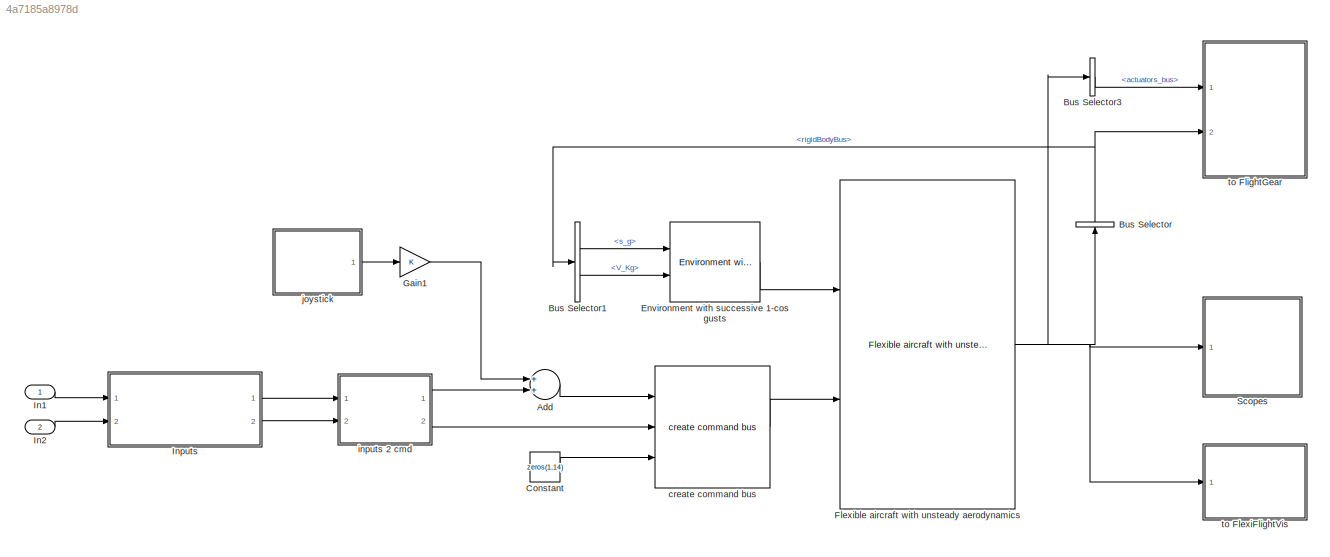
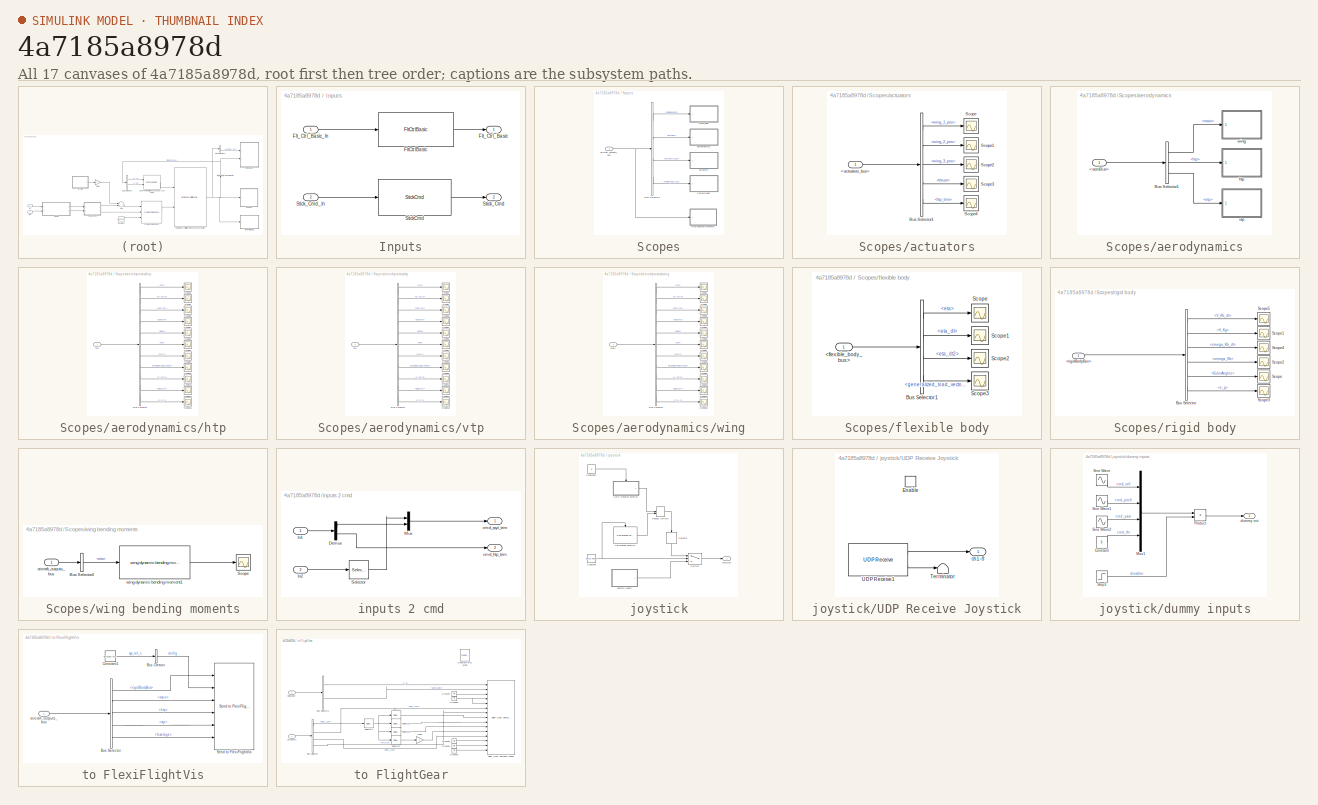
[diagram: thumbnail index - all 17 canvases of the model, root first then tree order]
MODEL slx_4a7185a8978d
KIND model
CONFIG AbsTol = 1e-2
CONFIG EnableMultiTasking = off
CONFIG FixedStep = 1/600
CONFIG MaxStep = auto
CONFIG MinStep = auto
CONFIG RelTol = 1e-2
CONFIG SampleTimeConstraint = Unconstrained
CONFIG Solver = ode4
CONFIG SolverName = ode4
CONFIG StartTime = 0.0
CONFIG StopTime = 1000
WORKSPACE source: MAT-file member
WORKSPACE Var = 0
BLOCK [Sum] Add
  InputSameDT = off
  OutDataTypeStr = Inherit: Inherit via internal rule
  Ports = [2, 1]
  SaturateOnIntegerOverflow = off
BLOCK [BusSelector] Bus Selector
  OutputAsBus = off
  OutputSignals = flexible_body_bus.rigidBodyBus
  Ports = [1, 1]
BLOCK [BusSelector] Bus Selector1
  OutputAsBus = off
  OutputSignals = s_g,V_Kg
  Ports = [1, 2]
BLOCK [BusSelector] Bus Selector3
  OutputAsBus = off
  OutputSignals = actuators_bus
  Ports = [1, 1]
BLOCK [Constant] Constant
  Value = zeros(1,14)
BLOCK [Reference] Environment with successive 1-cos gusts  REF=se2a_environment_lib/Environment
with successive 1-cos gusts
  Ports = [2, 1]
  SourceBlock = se2a_environment_lib/Environment\nwith successive 1-cos gusts
  SourceProductName = SE2A library
BLOCK [Reference] Flexible aircraft with unsteady aerodynamics  REF=flight_dynamics_models/Flexible aircraft with unsteady aerodynamics
  Ports = [2, 1]
  SourceBlock = flight_dynamics_models/Flexible aircraft with unsteady aerodynamics
  SourceProductName = SE2A library
BLOCK [Gain] Gain1
  OutDataTypeStr = Inherit: Inherit via internal rule
  ParamDataTypeStr = Inherit: Inherit via internal rule
  SaturateOnIntegerOverflow = off
BLOCK [Inport] In1
  IconDisplay = Port number
BLOCK [Inport] In2
  IconDisplay = Port number
  Port = 2
BLOCK [SubSystem] Inputs
  Ports = [2, 2]
  RequestExecContextInheritance = off
BLOCK [Reference] Inputs/FltCtrlBasic  REF=InputBlocks_library/FltCtrlBasic
  Ports = [1, 1]
  SourceBlock = InputBlocks_library/FltCtrlBasic
  SourceType = SubSystem
BLOCK [Outport] Inputs/Flt_Ctrl_Basic
  IconDisplay = Port number
BLOCK [Inport] Inputs/Flt_Ctrl_Basic_In
  IconDisplay = Port number
BLOCK [Reference] Inputs/StickCmd  REF=InputBlocks_library/StickCmd
  Ports = [1, 1]
  SourceBlock = InputBlocks_library/StickCmd
  SourceType = SubSystem
BLOCK [Outport] Inputs/Stick_Cmd
  IconDisplay = Port number
  Port = 2
BLOCK [Inport] Inputs/Stick_Cmd_In
  IconDisplay = Port number
  Port = 2
BLOCK [SubSystem] Scopes
  Commented = on
  Ports = [1]
  RequestExecContextInheritance = off
BLOCK [BusSelector] Scopes/Bus Selector1
  OutputAsBus = off
  OutputSignals = flexible_body_bus.rigidBodyBus,aeroBus,actuators_bus,flexible_body_bus
  Ports = [1, 4]
BLOCK [SubSystem] Scopes/actuators
  Ports = [1]
  RequestExecContextInheritance = off
BLOCK [Inport] Scopes/actuators/<actuators_bus>
  IconDisplay = Port number
BLOCK [BusSelector] Scopes/actuators/Bus Selector1
  OutputAsBus = off
  OutputSignals = wing_1_pos,wing_2_pos,wing_3_pos,thrust,htp_trim
  Ports = [1, 5]
BLOCK [Scope] Scopes/actuators/Scope
  Floating = off
  NumInputPorts = 1
  Ports = [1]
  ScopeSpecificationString = Simulink.scopes.TimeScopeBlockCfg('CurrentConfiguration', extmgr.ConfigurationSet(extmgr.Configuration('Core','General UI',true),extmgr.Configuration('Core','Source UI',true),extmgr.Configuration('Sources','WiredSimulink',true,'DataLoggingVariableName','ScopeData1'),extmgr.Configuration('Visuals','Time Domain',true),extmgr.Configuration('Tools','Plot Navigation',true),extmgr.Configuration('Tools',...<+40ch>  <repeated x3 — deduplicated; at blocks: Scope>
BLOCK [Scope] Scopes/actuators/Scope1
  Floating = off
  NumInputPorts = 1
  Ports = [1]
  ScopeSpecificationString = Simulink.scopes.TimeScopeBlockCfg('CurrentConfiguration', extmgr.ConfigurationSet(extmgr.Configuration('Core','General UI',true),extmgr.Configuration('Core','Source UI',true),extmgr.Configuration('Sources','WiredSimulink',true,'DataLoggingVariableName','ScopeData2'),extmgr.Configuration('Visuals','Time Domain',true),extmgr.Configuration('Tools','Plot Navigation',true),extmgr.Configuration('Tools',...<+40ch>
BLOCK [Scope] Scopes/actuators/Scope2
  Floating = off
  NumInputPorts = 1
  Ports = [1]
  ScopeSpecificationString = Simulink.scopes.TimeScopeBlockCfg('CurrentConfiguration', extmgr.ConfigurationSet(extmgr.Configuration('Core','General UI',true),extmgr.Configuration('Core','Source UI',true),extmgr.Configuration('Sources','WiredSimulink',true,'DataLoggingVariableName','ScopeData3'),extmgr.Configuration('Visuals','Time Domain',true),extmgr.Configuration('Tools','Plot Navigation',true),extmgr.Configuration('Tools',...<+40ch>
BLOCK [Scope] Scopes/actuators/Scope3
  Floating = off
  NumInputPorts = 1
  Ports = [1]
  ScopeSpecificationString = Simulink.scopes.TimeScopeBlockCfg('CurrentConfiguration', extmgr.ConfigurationSet(extmgr.Configuration('Core','General UI',true),extmgr.Configuration('Core','Source UI',true),extmgr.Configuration('Sources','WiredSimulink',true,'DataLoggingVariableName','ScopeData4'),extmgr.Configuration('Visuals','Time Domain',true),extmgr.Configuration('Tools','Plot Navigation',true),extmgr.Configuration('Tools',...<+40ch>
BLOCK [Scope] Scopes/actuators/Scope4
  Floating = off
  NumInputPorts = 1
  Ports = [1]
  ScopeSpecificationString = Simulink.scopes.TimeScopeBlockCfg('CurrentConfiguration', extmgr.ConfigurationSet(extmgr.Configuration('Core','General UI',true),extmgr.Configuration('Core','Source UI',true),extmgr.Configuration('Sources','WiredSimulink',true,'DataLoggingVariableName','ScopeData5'),extmgr.Configuration('Visuals','Time Domain',true),extmgr.Configuration('Tools','Plot Navigation',true),extmgr.Configuration('Tools',...<+40ch>
BLOCK [SubSystem] Scopes/aerodynamics
  Ports = [1]
  RequestExecContextInheritance = off
BLOCK [Inport] Scopes/aerodynamics/<aeroBus>
  IconDisplay = Port number
BLOCK [BusSelector] Scopes/aerodynamics/Bus Selector1
  OutputAsBus = off
  OutputSignals = main,htp,vtp
  Ports = [1, 3]
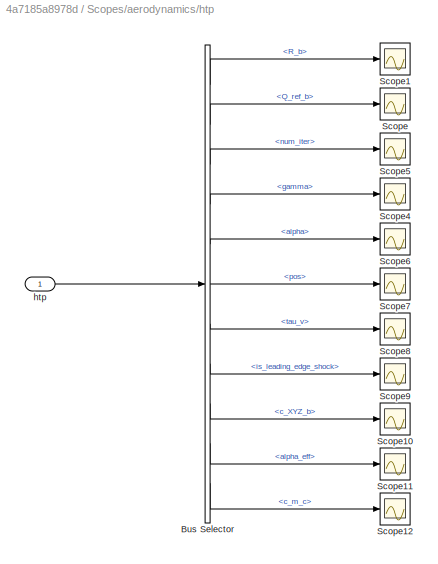
BLOCK [SubSystem] Scopes/aerodynamics/htp
  Ports = [1]
  RequestExecContextInheritance = off
BLOCK [BusSelector] Scopes/aerodynamics/htp/Bus Selector
  OutputAsBus = off
  OutputSignals = aero.force_glob.R_b,aero.force_glob.Q_ref_b,aero.circulation.num_iter,aero.circulation.gamma,body.alpha,actuators.pos,aero.unsteady.tau_v,aero.unsteady.is_leading_edge_shock,aero.coeff_loc.c_XYZ_b,aero.circulation.alpha_eff,aero.unsteady.c_m_c  <repeated x3 — deduplicated; at blocks: Bus Selector>
  Ports = [1, 11]
BLOCK [Scope] Scopes/aerodynamics/htp/Scope
  Floating = off
  NumInputPorts = 1
  Ports = [1]
  ScopeSpecificationString = Simulink.scopes.TimeScopeBlockCfg('CurrentConfiguration', extmgr.ConfigurationSet(extmgr.Configuration('Core','General UI',true),extmgr.Configuration('Core','Source UI',true),extmgr.Configuration('Sources','WiredSimulink',true),extmgr.Configuration('Visuals','Time Domain',true,'SerializedDisplays',{struct('MinYLimReal','-184895.6256','MaxYLimReal','154792.59395','YLabelReal','','MinYLimMag','    0...<+1557ch>  <repeated x3 — deduplicated; at blocks: Scope>
BLOCK [Scope] Scopes/aerodynamics/htp/Scope1
  Floating = off
  NumInputPorts = 1
  Ports = [1]
  ScopeSpecificationString = Simulink.scopes.TimeScopeBlockCfg('CurrentConfiguration', extmgr.ConfigurationSet(extmgr.Configuration('Core','General UI',true),extmgr.Configuration('Core','Source UI',true),extmgr.Configuration('Sources','WiredSimulink',true,'DataLoggingVariableName','ScopeData1'),extmgr.Configuration('Visuals','Time Domain',true,'SerializedDisplays',{struct('MinYLimReal','-1568444.15978','MaxYLimReal','293844.6...<+1502ch>  <repeated x3 — deduplicated; at blocks: Scope1>
BLOCK [Scope] Scopes/aerodynamics/htp/Scope10
  Floating = off
  NumInputPorts = 1
  Ports = [1]
  ScopeSpecificationString = Simulink.scopes.TimeScopeBlockCfg('CurrentConfiguration', extmgr.ConfigurationSet(extmgr.Configuration('Core','General UI',true),extmgr.Configuration('Core','Source UI',true),extmgr.Configuration('Sources','WiredSimulink',true,'DataLoggingVariableName','ScopeData3'),extmgr.Configuration('Visuals','Time Domain',true,'SerializedDisplays',{struct('MinYLimReal','-0.83108','MaxYLimReal','0.62705','YLab...<+3241ch>  <repeated x3 — deduplicated; at blocks: Scope10>
BLOCK [Scope] Scopes/aerodynamics/htp/Scope11
  Floating = off
  NumInputPorts = 1
  Ports = [1]
  ScopeSpecificationString = Simulink.scopes.TimeScopeBlockCfg('CurrentConfiguration', extmgr.ConfigurationSet(extmgr.Configuration('Core','General UI',true),extmgr.Configuration('Core','Source UI',true),extmgr.Configuration('Sources','WiredSimulink',true,'DataLoggingVariableName','ScopeData1'),extmgr.Configuration('Visuals','Time Domain',true,'SerializedDisplays',{struct('MinYLimReal','-0.21087','MaxYLimReal','0.43502','YLab...<+2439ch>  <repeated x3 — deduplicated; at blocks: Scope11>
BLOCK [Scope] Scopes/aerodynamics/htp/Scope12
  Floating = off
  NumInputPorts = 1
  Ports = [1]
  ScopeSpecificationString = Simulink.scopes.TimeScopeBlockCfg('CurrentConfiguration', extmgr.ConfigurationSet(extmgr.Configuration('Core','General UI',true),extmgr.Configuration('Core','Source UI',true),extmgr.Configuration('Sources','WiredSimulink',true,'DataLoggingVariableName','ScopeData2'),extmgr.Configuration('Visuals','Time Domain',true,'SerializedDisplays',{struct('MinYLimReal','-0.09849','MaxYLimReal','-0.08626','YLa...<+3578ch>  <repeated x3 — deduplicated; at blocks: Scope12>
BLOCK [Scope] Scopes/aerodynamics/htp/Scope4
  Floating = off
  NumInputPorts = 1
  Ports = [1]
  ScopeSpecificationString = Simulink.scopes.TimeScopeBlockCfg('CurrentConfiguration', extmgr.ConfigurationSet(extmgr.Configuration('Core','General UI',true),extmgr.Configuration('Core','Source UI',true),extmgr.Configuration('Sources','WiredSimulink',true,'DataLoggingVariableName','ScopeData2'),extmgr.Configuration('Visuals','Time Domain',true,'SerializedDisplays',{struct('MinYLimReal','-0.02668','MaxYLimReal','0.06156','YLab...<+1939ch>  <repeated x3 — deduplicated; at blocks: Scope4>
BLOCK [Scope] Scopes/aerodynamics/htp/Scope5
  Floating = off
  NumInputPorts = 1
  Ports = [1]
  ScopeSpecificationString = Simulink.scopes.TimeScopeBlockCfg('CurrentConfiguration', extmgr.ConfigurationSet(extmgr.Configuration('Core','General UI',true),extmgr.Configuration('Core','Source UI',true),extmgr.Configuration('Sources','WiredSimulink',true,'DataLoggingVariableName','ScopeData3'),extmgr.Configuration('Visuals','Time Domain',true,'SerializedDisplays',{struct('MinYLimReal','0.99807','MaxYLimReal','1.00097','YLabe...<+1540ch>  <repeated x3 — deduplicated; at blocks: Scope5>
BLOCK [Scope] Scopes/aerodynamics/htp/Scope6
  Floating = off
  NumInputPorts = 1
  Ports = [1]
  ScopeSpecificationString = Simulink.scopes.TimeScopeBlockCfg('CurrentConfiguration', extmgr.ConfigurationSet(extmgr.Configuration('Core','General UI',true),extmgr.Configuration('Core','Source UI',true),extmgr.Configuration('Sources','WiredSimulink',true,'DataLoggingVariableName','ScopeData2'),extmgr.Configuration('Visuals','Time Domain',true,'SerializedDisplays',{struct('MinYLimReal','-0.02816','MaxYLimReal','0.06705','YLab...<+1440ch>  <repeated x3 — deduplicated; at blocks: Scope6>
BLOCK [Scope] Scopes/aerodynamics/htp/Scope7
  Floating = off
  NumInputPorts = 1
  Ports = [1]
  ScopeSpecificationString = Simulink.scopes.TimeScopeBlockCfg('CurrentConfiguration', extmgr.ConfigurationSet(extmgr.Configuration('Core','General UI',true),extmgr.Configuration('Core','Source UI',true),extmgr.Configuration('Sources','WiredSimulink',true,'DataLoggingVariableName','ScopeData1'),extmgr.Configuration('Visuals','Time Domain',true,'SerializedDisplays',{struct('MinYLimReal','-17.69476','MaxYLimReal','17.69476','YL...<+2306ch>  <repeated x3 — deduplicated; at blocks: Scope7>
BLOCK [Scope] Scopes/aerodynamics/htp/Scope8
  Floating = off
  NumInputPorts = 1
  Ports = [1]
  ScopeSpecificationString = Simulink.scopes.TimeScopeBlockCfg('CurrentConfiguration', extmgr.ConfigurationSet(extmgr.Configuration('Core','General UI',true),extmgr.Configuration('Core','Source UI',true),extmgr.Configuration('Sources','WiredSimulink',true,'DataLoggingVariableName','ScopeData1'),extmgr.Configuration('Visuals','Time Domain',true,'SerializedDisplays',{struct('MinYLimReal','-568.20569','MaxYLimReal','5113.85123',...<+2878ch>  <repeated x3 — deduplicated; at blocks: Scope8>
BLOCK [Scope] Scopes/aerodynamics/htp/Scope9
  Floating = off
  NumInputPorts = 1
  Ports = [1]
  ScopeSpecificationString = Simulink.scopes.TimeScopeBlockCfg('CurrentConfiguration', extmgr.ConfigurationSet(extmgr.Configuration('Core','General UI',true),extmgr.Configuration('Core','Source UI',true),extmgr.Configuration('Sources','WiredSimulink',true,'DataLoggingVariableName','ScopeData2'),extmgr.Configuration('Visuals','Time Domain',true,'SerializedDisplays',{struct('MinYLimReal','-0.125','MaxYLimReal','1.125','YLabelRe...<+3563ch>  <repeated x3 — deduplicated; at blocks: Scope9>
BLOCK [Inport] Scopes/aerodynamics/htp/htp
  IconDisplay = Port number
BLOCK [SubSystem] Scopes/aerodynamics/vtp
  Ports = [1]
  RequestExecContextInheritance = off
BLOCK [BusSelector] Scopes/aerodynamics/vtp/Bus Selector
  OutputAsBus = off
  Ports = [1, 11]
BLOCK [Scope] Scopes/aerodynamics/vtp/Scope
  Floating = off
  NumInputPorts = 1
  Ports = [1]
BLOCK [Scope] Scopes/aerodynamics/vtp/Scope1
  Floating = off
  NumInputPorts = 1
  Ports = [1]
BLOCK [Scope] Scopes/aerodynamics/vtp/Scope10
  Floating = off
  NumInputPorts = 1
  Ports = [1]
BLOCK [Scope] Scopes/aerodynamics/vtp/Scope11
  Floating = off
  NumInputPorts = 1
  Ports = [1]
BLOCK [Scope] Scopes/aerodynamics/vtp/Scope12
  Floating = off
  NumInputPorts = 1
  Ports = [1]
BLOCK [Scope] Scopes/aerodynamics/vtp/Scope4
  Floating = off
  NumInputPorts = 1
  Ports = [1]
BLOCK [Scope] Scopes/aerodynamics/vtp/Scope5
  Floating = off
  NumInputPorts = 1
  Ports = [1]
BLOCK [Scope] Scopes/aerodynamics/vtp/Scope6
  Floating = off
  NumInputPorts = 1
  Ports = [1]
BLOCK [Scope] Scopes/aerodynamics/vtp/Scope7
  Floating = off
  NumInputPorts = 1
  Ports = [1]
BLOCK [Scope] Scopes/aerodynamics/vtp/Scope8
  Floating = off
  NumInputPorts = 1
  Ports = [1]
BLOCK [Scope] Scopes/aerodynamics/vtp/Scope9
  Floating = off
  NumInputPorts = 1
  Ports = [1]
BLOCK [Inport] Scopes/aerodynamics/vtp/vtp
  IconDisplay = Port number
BLOCK [SubSystem] Scopes/aerodynamics/wing
  Ports = [1]
  RequestExecContextInheritance = off
BLOCK [BusSelector] Scopes/aerodynamics/wing/Bus Selector
  OutputAsBus = off
  Ports = [1, 11]
BLOCK [Scope] Scopes/aerodynamics/wing/Scope
  Floating = off
  NumInputPorts = 1
  Ports = [1]
BLOCK [Scope] Scopes/aerodynamics/wing/Scope1
  Floating = off
  NumInputPorts = 1
  Ports = [1]
BLOCK [Scope] Scopes/aerodynamics/wing/Scope10
  Floating = off
  NumInputPorts = 1
  Ports = [1]
BLOCK [Scope] Scopes/aerodynamics/wing/Scope11
  Floating = off
  NumInputPorts = 1
  Ports = [1]
BLOCK [Scope] Scopes/aerodynamics/wing/Scope12
  Floating = off
  NumInputPorts = 1
  Ports = [1]
BLOCK [Scope] Scopes/aerodynamics/wing/Scope4
  Floating = off
  NumInputPorts = 1
  Ports = [1]
BLOCK [Scope] Scopes/aerodynamics/wing/Scope5
  Floating = off
  NumInputPorts = 1
  Ports = [1]
BLOCK [Scope] Scopes/aerodynamics/wing/Scope6
  Floating = off
  NumInputPorts = 1
  Ports = [1]
BLOCK [Scope] Scopes/aerodynamics/wing/Scope7
  Floating = off
  NumInputPorts = 1
  Ports = [1]
BLOCK [Scope] Scopes/aerodynamics/wing/Scope8
  Floating = off
  NumInputPorts = 1
  Ports = [1]
BLOCK [Scope] Scopes/aerodynamics/wing/Scope9
  Floating = off
  NumInputPorts = 1
  Ports = [1]
BLOCK [Inport] Scopes/aerodynamics/wing/main
  IconDisplay = Port number
BLOCK [Inport] Scopes/aircraft_outputs_bus
  IconDisplay = Port number
BLOCK [SubSystem] Scopes/flexible body
  Ports = [1]
  RequestExecContextInheritance = off
BLOCK [Inport] Scopes/flexible body/<flexible_body_bus>
  IconDisplay = Port number
BLOCK [BusSelector] Scopes/flexible body/Bus Selector1
  OutputAsBus = off
  OutputSignals = eta,eta_dt,eta_dt2,generalized_load_vector
  Ports = [1, 4]
BLOCK [Scope] Scopes/flexible body/Scope
  Floating = off
  NumInputPorts = 1
  Ports = [1]
BLOCK [Scope] Scopes/flexible body/Scope1
  Floating = off
  NumInputPorts = 1
  Ports = [1]
  ScopeSpecificationString = Simulink.scopes.TimeScopeBlockCfg('CurrentConfiguration', extmgr.ConfigurationSet(extmgr.Configuration('Core','General UI',true),extmgr.Configuration('Core','Source UI',true),extmgr.Configuration('Sources','WiredSimulink',true,'DataLoggingVariableName','ScopeData2'),extmgr.Configuration('Visuals','Time Domain',true),extmgr.Configuration('Tools','Plot Navigation',true),extmgr.Configuration('Tools',...<+40ch>
BLOCK [Scope] Scopes/flexible body/Scope2
  Floating = off
  NumInputPorts = 1
  Ports = [1]
  ScopeSpecificationString = Simulink.scopes.TimeScopeBlockCfg('CurrentConfiguration', extmgr.ConfigurationSet(extmgr.Configuration('Core','General UI',true),extmgr.Configuration('Core','Source UI',true),extmgr.Configuration('Sources','WiredSimulink',true,'DataLoggingVariableName','ScopeData3'),extmgr.Configuration('Visuals','Time Domain',true),extmgr.Configuration('Tools','Plot Navigation',true),extmgr.Configuration('Tools',...<+40ch>
BLOCK [Scope] Scopes/flexible body/Scope3
  Floating = off
  NumInputPorts = 1
  Ports = [1]
  ScopeSpecificationString = Simulink.scopes.TimeScopeBlockCfg('CurrentConfiguration', extmgr.ConfigurationSet(extmgr.Configuration('Core','General UI',true),extmgr.Configuration('Core','Source UI',true),extmgr.Configuration('Sources','WiredSimulink',true,'DataLoggingVariableName','ScopeData4'),extmgr.Configuration('Visuals','Time Domain',true),extmgr.Configuration('Tools','Plot Navigation',true),extmgr.Configuration('Tools',...<+40ch>
BLOCK [SubSystem] Scopes/rigid body
  Ports = [1]
  RequestExecContextInheritance = off
BLOCK [Inport] Scopes/rigid body/<rigidBodyBus>
  IconDisplay = Port number
BLOCK [BusSelector] Scopes/rigid body/Bus Selector
  OutputAsBus = off
  OutputSignals = V_Kb_dt,V_Kg,omega_Kb_dt,omega_Kb,EulerAngles,s_g
  Ports = [1, 6]
BLOCK [Scope] Scopes/rigid body/Scope
  Floating = off
  NumInputPorts = 1
  Ports = [1]
  ScopeSpecificationString = Simulink.scopes.TimeScopeBlockCfg('CurrentConfiguration', extmgr.ConfigurationSet(extmgr.Configuration('Core','General UI',true),extmgr.Configuration('Core','Source UI',true),extmgr.Configuration('Sources','WiredSimulink',true),extmgr.Configuration('Visuals','Time Domain',true,'SerializedDisplays',{struct('MinYLimReal','-0.00989','MaxYLimReal','0.08693','YLabelReal','','MinYLimMag','0.00000','MaxY...<+1543ch>
BLOCK [Scope] Scopes/rigid body/Scope1
  Floating = off
  NumInputPorts = 1
  Ports = [1]
  ScopeSpecificationString = Simulink.scopes.TimeScopeBlockCfg('CurrentConfiguration', extmgr.ConfigurationSet(extmgr.Configuration('Core','General UI',true),extmgr.Configuration('Core','Source UI',true),extmgr.Configuration('Sources','WiredSimulink',true,'DataLoggingVariableName','ScopeData1'),extmgr.Configuration('Visuals','Time Domain',true,'SerializedDisplays',{struct('MinYLimReal','-61.09582','MaxYLimReal','122.90616','Y...<+1524ch>
BLOCK [Scope] Scopes/rigid body/Scope2
  Floating = off
  NumInputPorts = 1
  Ports = [1]
  ScopeSpecificationString = Simulink.scopes.TimeScopeBlockCfg('CurrentConfiguration', extmgr.ConfigurationSet(extmgr.Configuration('Core','General UI',true),extmgr.Configuration('Core','Source UI',true),extmgr.Configuration('Sources','WiredSimulink',true,'DataLoggingVariableName','ScopeData2'),extmgr.Configuration('Visuals','Time Domain',true,'SerializedDisplays',{struct('MinYLimReal','-0.49312','MaxYLimReal','1.12973','YLab...<+1433ch>
BLOCK [Scope] Scopes/rigid body/Scope3
  Floating = off
  NumInputPorts = 1
  Ports = [1]
  ScopeSpecificationString = Simulink.scopes.TimeScopeBlockCfg('CurrentConfiguration', extmgr.ConfigurationSet(extmgr.Configuration('Core','General UI',true),extmgr.Configuration('Core','Source UI',true),extmgr.Configuration('Sources','WiredSimulink',true,'DataLoggingVariableName','ScopeData1'),extmgr.Configuration('Visuals','Time Domain',true,'SerializedDisplays',{struct('MinYLimReal','-238.16317','MaxYLimReal','1322.59727',...<+1481ch>
BLOCK [Scope] Scopes/rigid body/Scope4
  Floating = off
  NumInputPorts = 1
  Ports = [1]
  ScopeSpecificationString = Simulink.scopes.TimeScopeBlockCfg('CurrentConfiguration', extmgr.ConfigurationSet(extmgr.Configuration('Core','General UI',true),extmgr.Configuration('Core','Source UI',true),extmgr.Configuration('Sources','WiredSimulink',true,'DataLoggingVariableName','ScopeData2'),extmgr.Configuration('Visuals','Time Domain',true,'SerializedDisplays',{struct('MinYLimReal','-1.21871','MaxYLimReal','1.27034','YLab...<+1481ch>
BLOCK [Scope] Scopes/rigid body/Scope5
  Floating = off
  NumInputPorts = 1
  Ports = [1]
  ScopeSpecificationString = Simulink.scopes.TimeScopeBlockCfg('CurrentConfiguration', extmgr.ConfigurationSet(extmgr.Configuration('Core','General UI',true),extmgr.Configuration('Core','Source UI',true),extmgr.Configuration('Sources','WiredSimulink',true,'DataLoggingVariableName','ScopeData10'),extmgr.Configuration('Visuals','Time Domain',true,'SerializedDisplays',{struct('MinYLimReal','-1198.97888','MaxYLimReal','137.72003'...<+1490ch>
BLOCK [SubSystem] Scopes/wing bending moments
  Ports = [1]
  RequestExecContextInheritance = off
BLOCK [BusSelector] Scopes/wing bending moments/Bus Selector4
  OutputAsBus = off
  OutputSignals = flexible_body_bus.eta
  Ports = [1, 1]
BLOCK [Scope] Scopes/wing bending moments/Scope
  Floating = off
  NumInputPorts = 1
  Ports = [1]
BLOCK [Inport] Scopes/wing bending moments/aircraft_outputs_bus
  IconDisplay = Port number
BLOCK [Reference] Scopes/wing bending moments/wing dynamic bending moment1  REF=aeroelasticity_lib/wing dynamic bending moment  (lib defined in slx_f476f02afcdd)
  Ports = [1, 1]
  SourceBlock = aeroelasticity_lib/wing dynamic bending moment
  SourceProductName = LADAC
BLOCK [Reference] create command bus  REF=se2a_command_lib/create command bus
  Ports = [3, 1]
  SourceBlock = se2a_command_lib/create command bus
  SourceProductName = SE2A library
BLOCK [SubSystem] inputs 2 cmd
  Ports = [2, 2]
  RequestExecContextInheritance = off
BLOCK [Demux] inputs 2 cmd/Demux
  DisplayOption = bar
  Outputs = 2
  Ports = [1, 2]
BLOCK [Inport] inputs 2 cmd/In1
  IconDisplay = Port number
BLOCK [Inport] inputs 2 cmd/In2
  IconDisplay = Port number
  Port = 2
BLOCK [Mux] inputs 2 cmd/Mux
  DisplayOption = bar
  Inputs = 2
  Ports = [2, 1]
BLOCK [Selector] inputs 2 cmd/Selector
  IndexOptions = Index vector (dialog)
  Indices = 1:3
  InputPortWidth = 4
  OutputSizes = 1
  Ports = [1, 1]
BLOCK [Outport] inputs 2 cmd/cmd_htp_trim
  IconDisplay = Port number
  Port = 2
BLOCK [Outport] inputs 2 cmd/cmd_rpyt_trim
  IconDisplay = Port number
BLOCK [SubSystem] joystick
  Commented = on
  Ports = [0, 1]
  RequestExecContextInheritance = off
BLOCK [Reference] joystick/Calibrated Joystick  REF=joystick_lib/Calibrated Joystick  (lib defined in slx_c24d1f50ed98)
  Ports = [0, 1, 1]
  SourceBlock = joystick_lib/Calibrated Joystick
  SourceProductName = LADAC
BLOCK [Constant] joystick/Constant
  Value = jystck.enable
BLOCK [Constant] joystick/Constant1
  Value = 0
BLOCK [ManualSwitch] joystick/Manual Switch
  CurrentSetting = 0
BLOCK [Selector] joystick/Selector
  IndexOptions = Index vector (dialog)
  Indices = [1,2,3,4]
  InputPortWidth = 8
  OutputSizes = 1
  Ports = [1, 1]
BLOCK [Switch] joystick/Switch
  Criteria = u2 > Threshold
  InputSameDT = off
  SaturateOnIntegerOverflow = off
BLOCK [SubSystem] joystick/UDP Receive Joystick
  Ports = [0, 1, 1]
  RequestExecContextInheritance = off
BLOCK [EnablePort] joystick/UDP Receive Joystick/Enable
  Ports = []
BLOCK [Terminator] joystick/UDP Receive Joystick/Terminator
BLOCK [Reference] joystick/UDP Receive Joystick/UDP Receive1  REF=dspnetwork/UDP Receive
  Ports = [0, 2]
  SourceBlock = dspnetwork/UDP Receive
  SourceProductBaseCode = DS
  SourceProductName = DSP System Toolbox
  SourceType = UDP Receive
BLOCK [Outport] joystick/UDP Receive Joystick/ch1-8
  IconDisplay = Port number
BLOCK [Outport] joystick/cmd_rpyt
  IconDisplay = Port number
BLOCK [SubSystem] joystick/dummy inputs
  Ports = [0, 1]
  RequestExecContextInheritance = off
BLOCK [Constant] joystick/dummy inputs/Constant
  Value = 0
BLOCK [Mux] joystick/dummy inputs/Mux1
  DisplayOption = bar
  Ports = [4, 1]
BLOCK [Product] joystick/dummy inputs/Product
  InputSameDT = off
  OutDataTypeStr = Inherit: Inherit via internal rule
  Ports = [2, 1]
  RndMeth = Floor
  SaturateOnIntegerOverflow = off
BLOCK [Sin] joystick/dummy inputs/Sine Wave
  Amplitude = 0.1
  Frequency = 3
  Ports = [0, 1]
  SampleTime = 0
BLOCK [Sin] joystick/dummy inputs/Sine Wave1
  Amplitude = 0.1
  Frequency = 4
  Ports = [0, 1]
  SampleTime = 0
BLOCK [Sin] joystick/dummy inputs/Sine Wave2
  Amplitude = 0.1
  Frequency = 5
  Ports = [0, 1]
  SampleTime = 0
BLOCK [Step] joystick/dummy inputs/Step3
  After = 0
  Before = 1
  SampleTime = 0
  Time = 10
BLOCK [Outport] joystick/dummy inputs/dummy out
  IconDisplay = Port number
BLOCK [SubSystem] to FlexiFlightVis
  Ports = [1]
  RequestExecContextInheritance = off
BLOCK [BusCreator] to FlexiFlightVis/Bus Creator
  DisplayOption = bar
  InheritFromInputs = on
  Inputs = 1
  Ports = [1, 1]
BLOCK [BusSelector] to FlexiFlightVis/Bus Selector
  OutputAsBus = off
  OutputSignals = flexible_body_bus.rigidBodyBus,aeroBus.main,aeroBus.htp,aeroBus.vtp,aeroBus.fuselage
  Ports = [1, 5]
BLOCK [Constant] to FlexiFlightVis/Constant1
  Value = aircraft.config.xyz_ref_c
  VectorParams1D = off
BLOCK [Reference] to FlexiFlightVis/Send to FlexiFlightVis  REF=flexiFlightVis_lib/Send to FlexiFlightVis
  Ports = [6]
  SourceBlock = flexiFlightVis_lib/Send to FlexiFlightVis
  SourceProductName = LADAC
BLOCK [Inport] to FlexiFlightVis/aircraft_outputs_bus
  IconDisplay = Port number
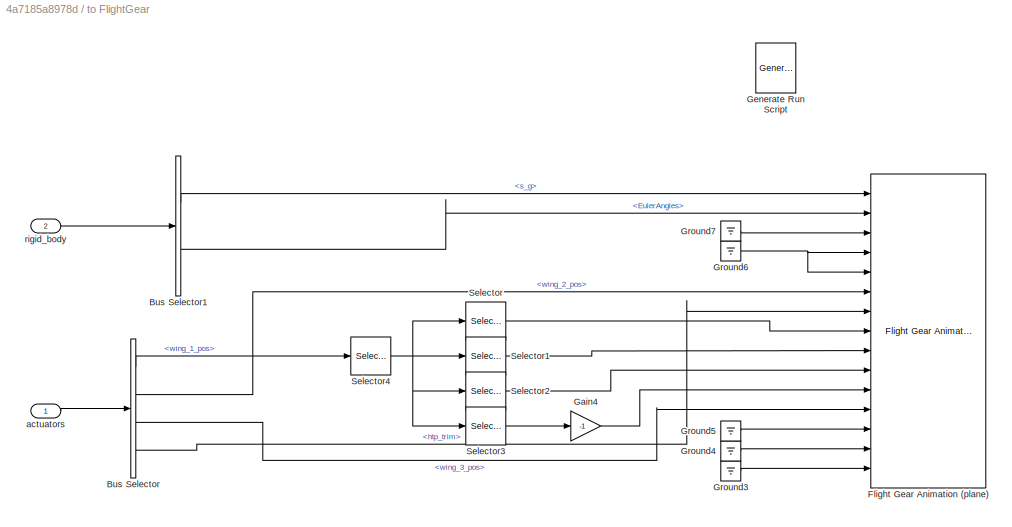
BLOCK [SubSystem] to FlightGear
  Commented = on
  Ports = [2]
  RequestExecContextInheritance = off
BLOCK [BusSelector] to FlightGear/Bus Selector
  OutputAsBus = off
  OutputSignals = wing_1_pos,wing_2_pos,wing_3_pos,htp_trim
  Ports = [1, 4]
BLOCK [BusSelector] to FlightGear/Bus Selector1
  OutputAsBus = off
  OutputSignals = s_g,EulerAngles
  Ports = [1, 2]
BLOCK [Reference] to FlightGear/Flight Gear Animation (plane)  REF=flightgear_visualization_lib/Flight Gear Animation (plane)  (lib defined in slx_722f04e3a3fc)
  Ports = [15]
  SourceBlock = flightgear_visualization_lib/Flight Gear Animation (plane)
  SourceProductName = LADAC
BLOCK [Gain] to FlightGear/Gain4
  Gain = -1
  OutDataTypeStr = Inherit: Inherit via internal rule
  ParamDataTypeStr = Inherit: Inherit via internal rule
  SaturateOnIntegerOverflow = off
BLOCK [Reference] to FlightGear/Generate Run Script  REF=aerolibfltsims/Generate
Run Script
  Ports = []
  SourceBlock = aerolibfltsims/Generate\nRun Script
  SourceProductBaseCode = AE
  SourceProductName = Aerospace Blockset
  SourceType = Generate FlightGear Run Script
BLOCK [Ground] to FlightGear/Ground3
BLOCK [Ground] to FlightGear/Ground4
BLOCK [Ground] to FlightGear/Ground5
BLOCK [Ground] to FlightGear/Ground6
BLOCK [Ground] to FlightGear/Ground7
BLOCK [Selector] to FlightGear/Selector
  IndexOptions = Index vector (dialog)
  Indices = 3
  InputPortWidth = 6
  OutputSizes = 1
  Ports = [1, 1]
BLOCK [Selector] to FlightGear/Selector1
  IndexOptions = Index vector (dialog)
  Indices = 4
  InputPortWidth = 6
  OutputSizes = 1
  Ports = [1, 1]
BLOCK [Selector] to FlightGear/Selector2
  IndexOptions = Index vector (dialog)
  Indices = 1
  InputPortWidth = 6
  OutputSizes = 1
  Ports = [1, 1]
BLOCK [Selector] to FlightGear/Selector3
  IndexOptions = Index vector (dialog)
  Indices = 6
  InputPortWidth = 6
  OutputSizes = 1
  Ports = [1, 1]
BLOCK [Selector] to FlightGear/Selector4
  IndexOptions = Index vector (dialog)
  Indices = [1:6]
  InputPortWidth = 20
  OutputSizes = 1
  Ports = [1, 1]
BLOCK [Inport] to FlightGear/actuators
  IconDisplay = Port number
BLOCK [Inport] to FlightGear/rigid_body
  IconDisplay = Port number
  Port = 2
LINE Add:1 -> create command bus:1
LINE Bus Selector1:1 -> Environment with successive 1-cos gusts:1
LINE Bus Selector1:2 -> Environment with successive 1-cos gusts:2
LINE Bus Selector3:1 -> to FlightGear:1
NET Bus Selector:1 -> Bus Selector1:1, to FlightGear:2
LINE Constant:1 -> create command bus:3
LINE Environment with successive 1-cos gusts:1 -> Flexible aircraft with unsteady aerodynamics:1
NET Flexible aircraft with unsteady aerodynamics:1 -> Bus Selector3:1, Bus Selector:1, Scopes:1, to FlexiFlightVis:1
LINE Gain1:1 -> Add:1
LINE In1:1 -> Inputs:1
LINE In2:1 -> Inputs:2
LINE Inputs/FltCtrlBasic:1 -> Inputs/Flt_Ctrl_Basic:1
LINE Inputs/Flt_Ctrl_Basic_In:1 -> Inputs/FltCtrlBasic:1
LINE Inputs/StickCmd:1 -> Inputs/Stick_Cmd:1
LINE Inputs/Stick_Cmd_In:1 -> Inputs/StickCmd:1
LINE Inputs:1 -> inputs 2 cmd:1
LINE Inputs:2 -> inputs 2 cmd:2
LINE Scopes/Bus Selector1:1 -> Scopes/rigid body:1
LINE Scopes/Bus Selector1:2 -> Scopes/aerodynamics:1
LINE Scopes/Bus Selector1:3 -> Scopes/actuators:1
LINE Scopes/Bus Selector1:4 -> Scopes/flexible body:1
LINE Scopes/actuators/<actuators_bus>:1 -> Scopes/actuators/Bus Selector1:1
LINE Scopes/actuators/Bus Selector1:1 -> Scopes/actuators/Scope:1
LINE Scopes/actuators/Bus Selector1:2 -> Scopes/actuators/Scope1:1
LINE Scopes/actuators/Bus Selector1:3 -> Scopes/actuators/Scope2:1
LINE Scopes/actuators/Bus Selector1:4 -> Scopes/actuators/Scope3:1
LINE Scopes/actuators/Bus Selector1:5 -> Scopes/actuators/Scope4:1
LINE Scopes/aerodynamics/<aeroBus>:1 -> Scopes/aerodynamics/Bus Selector1:1
LINE Scopes/aerodynamics/Bus Selector1:1 -> Scopes/aerodynamics/wing:1
LINE Scopes/aerodynamics/Bus Selector1:2 -> Scopes/aerodynamics/htp:1
LINE Scopes/aerodynamics/Bus Selector1:3 -> Scopes/aerodynamics/vtp:1
LINE Scopes/aerodynamics/htp/Bus Selector:1 -> Scopes/aerodynamics/htp/Scope1:1
LINE Scopes/aerodynamics/htp/Bus Selector:10 -> Scopes/aerodynamics/htp/Scope11:1
LINE Scopes/aerodynamics/htp/Bus Selector:11 -> Scopes/aerodynamics/htp/Scope12:1
LINE Scopes/aerodynamics/htp/Bus Selector:2 -> Scopes/aerodynamics/htp/Scope:1
LINE Scopes/aerodynamics/htp/Bus Selector:3 -> Scopes/aerodynamics/htp/Scope5:1
LINE Scopes/aerodynamics/htp/Bus Selector:4 -> Scopes/aerodynamics/htp/Scope4:1
LINE Scopes/aerodynamics/htp/Bus Selector:5 -> Scopes/aerodynamics/htp/Scope6:1
LINE Scopes/aerodynamics/htp/Bus Selector:6 -> Scopes/aerodynamics/htp/Scope7:1
LINE Scopes/aerodynamics/htp/Bus Selector:7 -> Scopes/aerodynamics/htp/Scope8:1
LINE Scopes/aerodynamics/htp/Bus Selector:8 -> Scopes/aerodynamics/htp/Scope9:1
LINE Scopes/aerodynamics/htp/Bus Selector:9 -> Scopes/aerodynamics/htp/Scope10:1
LINE Scopes/aerodynamics/htp/htp:1 -> Scopes/aerodynamics/htp/Bus Selector:1
LINE Scopes/aerodynamics/vtp/Bus Selector:1 -> Scopes/aerodynamics/vtp/Scope1:1
LINE Scopes/aerodynamics/vtp/Bus Selector:10 -> Scopes/aerodynamics/vtp/Scope11:1
LINE Scopes/aerodynamics/vtp/Bus Selector:11 -> Scopes/aerodynamics/vtp/Scope12:1
LINE Scopes/aerodynamics/vtp/Bus Selector:2 -> Scopes/aerodynamics/vtp/Scope:1
LINE Scopes/aerodynamics/vtp/Bus Selector:3 -> Scopes/aerodynamics/vtp/Scope5:1
LINE Scopes/aerodynamics/vtp/Bus Selector:4 -> Scopes/aerodynamics/vtp/Scope4:1
LINE Scopes/aerodynamics/vtp/Bus Selector:5 -> Scopes/aerodynamics/vtp/Scope6:1
LINE Scopes/aerodynamics/vtp/Bus Selector:6 -> Scopes/aerodynamics/vtp/Scope7:1
LINE Scopes/aerodynamics/vtp/Bus Selector:7 -> Scopes/aerodynamics/vtp/Scope8:1
LINE Scopes/aerodynamics/vtp/Bus Selector:8 -> Scopes/aerodynamics/vtp/Scope9:1
LINE Scopes/aerodynamics/vtp/Bus Selector:9 -> Scopes/aerodynamics/vtp/Scope10:1
LINE Scopes/aerodynamics/vtp/vtp:1 -> Scopes/aerodynamics/vtp/Bus Selector:1
LINE Scopes/aerodynamics/wing/Bus Selector:1 -> Scopes/aerodynamics/wing/Scope1:1
LINE Scopes/aerodynamics/wing/Bus Selector:10 -> Scopes/aerodynamics/wing/Scope11:1
LINE Scopes/aerodynamics/wing/Bus Selector:11 -> Scopes/aerodynamics/wing/Scope12:1
LINE Scopes/aerodynamics/wing/Bus Selector:2 -> Scopes/aerodynamics/wing/Scope:1
LINE Scopes/aerodynamics/wing/Bus Selector:3 -> Scopes/aerodynamics/wing/Scope5:1
LINE Scopes/aerodynamics/wing/Bus Selector:4 -> Scopes/aerodynamics/wing/Scope4:1
LINE Scopes/aerodynamics/wing/Bus Selector:5 -> Scopes/aerodynamics/wing/Scope6:1
LINE Scopes/aerodynamics/wing/Bus Selector:6 -> Scopes/aerodynamics/wing/Scope7:1
LINE Scopes/aerodynamics/wing/Bus Selector:7 -> Scopes/aerodynamics/wing/Scope8:1
LINE Scopes/aerodynamics/wing/Bus Selector:8 -> Scopes/aerodynamics/wing/Scope9:1
LINE Scopes/aerodynamics/wing/Bus Selector:9 -> Scopes/aerodynamics/wing/Scope10:1
LINE Scopes/aerodynamics/wing/main:1 -> Scopes/aerodynamics/wing/Bus Selector:1
NET Scopes/aircraft_outputs_bus:1 -> Scopes/Bus Selector1:1, Scopes/wing bending moments:1
LINE Scopes/flexible body/<flexible_body_bus>:1 -> Scopes/flexible body/Bus Selector1:1
LINE Scopes/flexible body/Bus Selector1:1 -> Scopes/flexible body/Scope:1
LINE Scopes/flexible body/Bus Selector1:2 -> Scopes/flexible body/Scope1:1
LINE Scopes/flexible body/Bus Selector1:3 -> Scopes/flexible body/Scope2:1
LINE Scopes/flexible body/Bus Selector1:4 -> Scopes/flexible body/Scope3:1
LINE Scopes/rigid body/<rigidBodyBus>:1 -> Scopes/rigid body/Bus Selector:1
LINE Scopes/rigid body/Bus Selector:1 -> Scopes/rigid body/Scope5:1
LINE Scopes/rigid body/Bus Selector:2 -> Scopes/rigid body/Scope1:1
LINE Scopes/rigid body/Bus Selector:3 -> Scopes/rigid body/Scope4:1
LINE Scopes/rigid body/Bus Selector:4 -> Scopes/rigid body/Scope2:1
LINE Scopes/rigid body/Bus Selector:5 -> Scopes/rigid body/Scope:1
LINE Scopes/rigid body/Bus Selector:6 -> Scopes/rigid body/Scope3:1
LINE Scopes/wing bending moments/Bus Selector4:1 -> Scopes/wing bending moments/wing dynamic bending moment1:1
LINE Scopes/wing bending moments/aircraft_outputs_bus:1 -> Scopes/wing bending moments/Bus Selector4:1
LINE Scopes/wing bending moments/wing dynamic bending moment1:1 -> Scopes/wing bending moments/Scope:1
LINE create command bus:1 -> Flexible aircraft with unsteady aerodynamics:2
LINE inputs 2 cmd/Demux:1 -> inputs 2 cmd/Mux:2
LINE inputs 2 cmd/Demux:2 -> inputs 2 cmd/cmd_htp_trim:1
LINE inputs 2 cmd/In1:1 -> inputs 2 cmd/Demux:1
LINE inputs 2 cmd/In2:1 -> inputs 2 cmd/Selector:1
LINE inputs 2 cmd/Mux:1 -> inputs 2 cmd/cmd_rpyt_trim:1
LINE inputs 2 cmd/Selector:1 -> inputs 2 cmd/Mux:1
LINE inputs 2 cmd:1 -> Add:2
LINE inputs 2 cmd:2 -> create command bus:2
LINE joystick/Calibrated Joystick:1 -> joystick/Manual Switch:2
LINE joystick/Constant1:1 -> joystick/UDP Receive Joystick:enable
NET joystick/Constant:1 -> joystick/Calibrated Joystick:enable, joystick/Switch:2
LINE joystick/Manual Switch:1 -> joystick/Selector:1
LINE joystick/Selector:1 -> joystick/Switch:1
LINE joystick/Switch:1 -> joystick/cmd_rpyt:1
LINE joystick/UDP Receive Joystick/UDP Receive1:1 -> joystick/UDP Receive Joystick/ch1-8:1
LINE joystick/UDP Receive Joystick/UDP Receive1:2 -> joystick/UDP Receive Joystick/Terminator:1
LINE joystick/UDP Receive Joystick:1 -> joystick/Manual Switch:1
LINE joystick/dummy inputs/Constant:1 -> joystick/dummy inputs/Mux1:4
LINE joystick/dummy inputs/Mux1:1 -> joystick/dummy inputs/Product:1
LINE joystick/dummy inputs/Product:1 -> joystick/dummy inputs/dummy out:1
LINE joystick/dummy inputs/Sine Wave1:1 -> joystick/dummy inputs/Mux1:2
LINE joystick/dummy inputs/Sine Wave2:1 -> joystick/dummy inputs/Mux1:3
LINE joystick/dummy inputs/Sine Wave:1 -> joystick/dummy inputs/Mux1:1
LINE joystick/dummy inputs/Step3:1 -> joystick/dummy inputs/Product:2
LINE joystick/dummy inputs:1 -> joystick/Switch:3
LINE joystick:1 -> Gain1:1
LINE to FlexiFlightVis/Bus Creator:1 -> to FlexiFlightVis/Send to FlexiFlightVis:2
LINE to FlexiFlightVis/Bus Selector:1 -> to FlexiFlightVis/Send to FlexiFlightVis:1
LINE to FlexiFlightVis/Bus Selector:2 -> to FlexiFlightVis/Send to FlexiFlightVis:3
LINE to FlexiFlightVis/Bus Selector:3 -> to FlexiFlightVis/Send to FlexiFlightVis:4
LINE to FlexiFlightVis/Bus Selector:4 -> to FlexiFlightVis/Send to FlexiFlightVis:5
LINE to FlexiFlightVis/Bus Selector:5 -> to FlexiFlightVis/Send to FlexiFlightVis:6
LINE to FlexiFlightVis/Constant1:1 -> to FlexiFlightVis/Bus Creator:1
LINE to FlexiFlightVis/aircraft_outputs_bus:1 -> to FlexiFlightVis/Bus Selector:1
LINE to FlightGear/Bus Selector1:1 -> to FlightGear/Flight Gear Animation (plane):1
LINE to FlightGear/Bus Selector1:2 -> to FlightGear/Flight Gear Animation (plane):2
LINE to FlightGear/Bus Selector:1 -> to FlightGear/Selector4:1
LINE to FlightGear/Bus Selector:2 -> to FlightGear/Flight Gear Animation (plane):6
LINE to FlightGear/Bus Selector:3 -> to FlightGear/Flight Gear Animation (plane):12
LINE to FlightGear/Bus Selector:4 -> to FlightGear/Flight Gear Animation (plane):7
LINE to FlightGear/Gain4:1 -> to FlightGear/Flight Gear Animation (plane):11
LINE to FlightGear/Ground3:1 -> to FlightGear/Flight Gear Animation (plane):15
LINE to FlightGear/Ground4:1 -> to FlightGear/Flight Gear Animation (plane):14
LINE to FlightGear/Ground5:1 -> to FlightGear/Flight Gear Animation (plane):13
NET to FlightGear/Ground6:1 -> to FlightGear/Flight Gear Animation (plane):4, to FlightGear/Flight Gear Animation (plane):5
LINE to FlightGear/Ground7:1 -> to FlightGear/Flight Gear Animation (plane):3
LINE to FlightGear/Selector1:1 -> to FlightGear/Flight Gear Animation (plane):9
LINE to FlightGear/Selector2:1 -> to FlightGear/Flight Gear Animation (plane):10
LINE to FlightGear/Selector3:1 -> to FlightGear/Gain4:1
NET to FlightGear/Selector4:1 -> to FlightGear/Selector1:1, to FlightGear/Selector2:1, to FlightGear/Selector3:1, to FlightGear/Selector:1
LINE to FlightGear/Selector:1 -> to FlightGear/Flight Gear Animation (plane):8
LINE to FlightGear/actuators:1 -> to FlightGear/Bus Selector:1
LINE to FlightGear/rigid_body:1 -> to FlightGear/Bus Selector1:1
note: NET lines group one-source signal fan-out (src -> all destinations, sorted); 1:1 wires keep LINE
